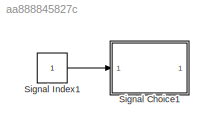
MODEL slx_aa888845827c
KIND model
CONFIG AbsTol = auto
CONFIG EnableMultiTasking = off
CONFIG FixedStep = auto
CONFIG MaxStep = auto
CONFIG MinStep = auto
CONFIG RelTol = 1e-3
CONFIG SampleTimeConstraint = Unconstrained
CONFIG Solver = VariableStepAuto
CONFIG SolverName = VariableStepAuto
CONFIG StartTime = 0.0
CONFIG StopTime = 10.0
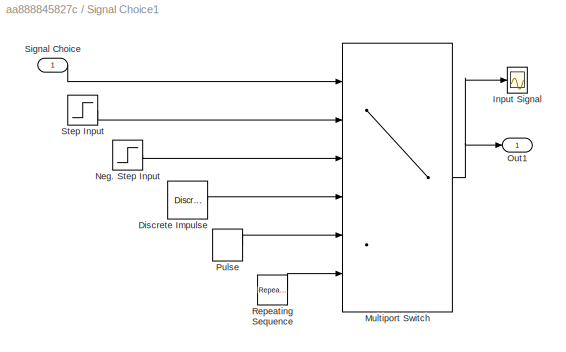
BLOCK [SubSystem] Signal Choice1
  Description = Input Signal
  Ports = [1, 1]
  RequestExecContextInheritance = off
  ShowPortLabels = none
BLOCK [Reference] Signal Choice1/Discrete Impulse  REF=dspsrcs4/Discrete 
Impulse
  Ports = [0, 1]
  SourceBlock = dspsrcs4/Discrete \nImpulse
  SourceProductBaseCode = DS
  SourceProductName = DSP System Toolbox
  SourceType = Discrete Impulse
BLOCK [Scope] Signal Choice1/Input Signal
  Commented = on
  Floating = off
  NumInputPorts = 1
  Ports = [1]
  ScopeSpecificationString = Simulink.scopes.TimeScopeBlockCfg('CurrentConfiguration', extmgr.ConfigurationSet(extmgr.Configuration('Core','General UI',true,'FigureColor',[1 1 1]),extmgr.Configuration('Core','Source UI',true),extmgr.Configuration('Sources','WiredSimulink',true,'DataLoggingVariableName','ScopeData1'),extmgr.Configuration('Visuals','Time Domain',true,'SerializedDisplays',{struct('MinYLimReal','0.9','MaxYLimReal...<+1681ch>
BLOCK [MultiPortSwitch] Signal Choice1/Multiport Switch
  InputSameDT = off
  Inputs = 5
  Ports = [6, 1]
  SaturateOnIntegerOverflow = off
BLOCK [Step] Signal Choice1/Neg. Step Input
  After = -1
  SampleTime = 0
  Time = 0
BLOCK [Outport] Signal Choice1/Out1
  IconDisplay = Port number
BLOCK [DiscretePulseGenerator] Signal Choice1/Pulse 
  Period = 40
  Ports = [0, 1]
  PulseType = Time based
  PulseWidth = 50
BLOCK [Reference] Signal Choice1/Repeating Sequence   REF=simulink/Sources/Repeating
Sequence
Stair
  Ports = [0, 1]
  SourceBlock = simulink/Sources/Repeating\nSequence\nStair
  SourceProductBaseCode = SL
  SourceProductName = Simulink
  SourceType = Repeating Sequence Stair
BLOCK [Inport] Signal Choice1/Signal Choice
  IconDisplay = Port number
BLOCK [Step] Signal Choice1/Step Input
  SampleTime = 0
  Time = 0
BLOCK [Constant] Signal Index1
LINE Signal Choice1/Discrete Impulse:1 -> Signal Choice1/Multiport Switch:4
NET Signal Choice1/Multiport Switch:1 -> Signal Choice1/Input Signal:1, Signal Choice1/Out1:1
LINE Signal Choice1/Neg. Step Input:1 -> Signal Choice1/Multiport Switch:3
LINE Signal Choice1/Pulse :1 -> Signal Choice1/Multiport Switch:5
LINE Signal Choice1/Repeating Sequence :1 -> Signal Choice1/Multiport Switch:6
LINE Signal Choice1/Signal Choice:1 -> Signal Choice1/Multiport Switch:1
LINE Signal Choice1/Step Input:1 -> Signal Choice1/Multiport Switch:2
LINE Signal Index1:1 -> Signal Choice1:1
note: NET lines group one-source signal fan-out (src -> all destinations, sorted); 1:1 wires keep LINE
